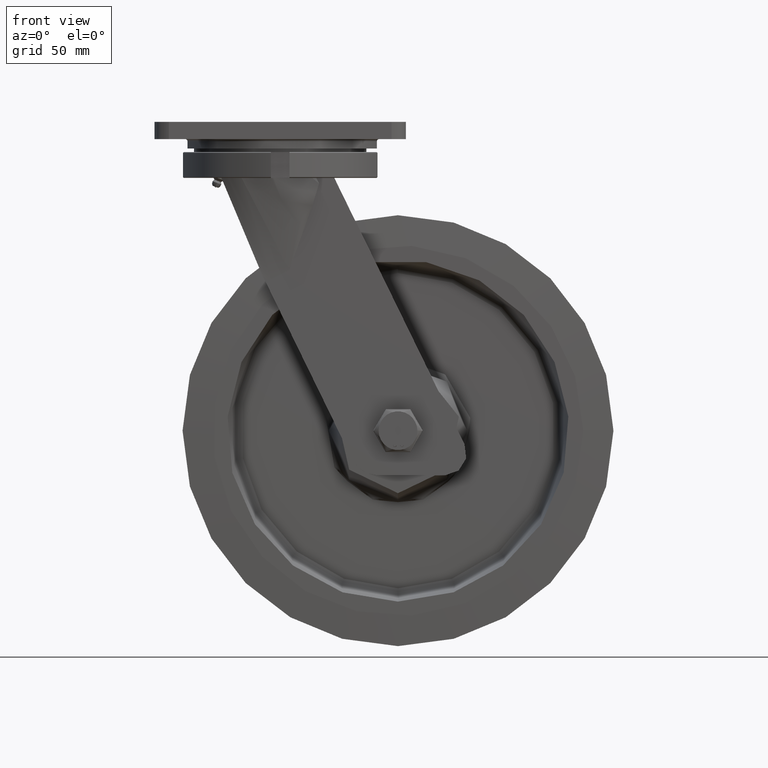
[diagram: clean part render]
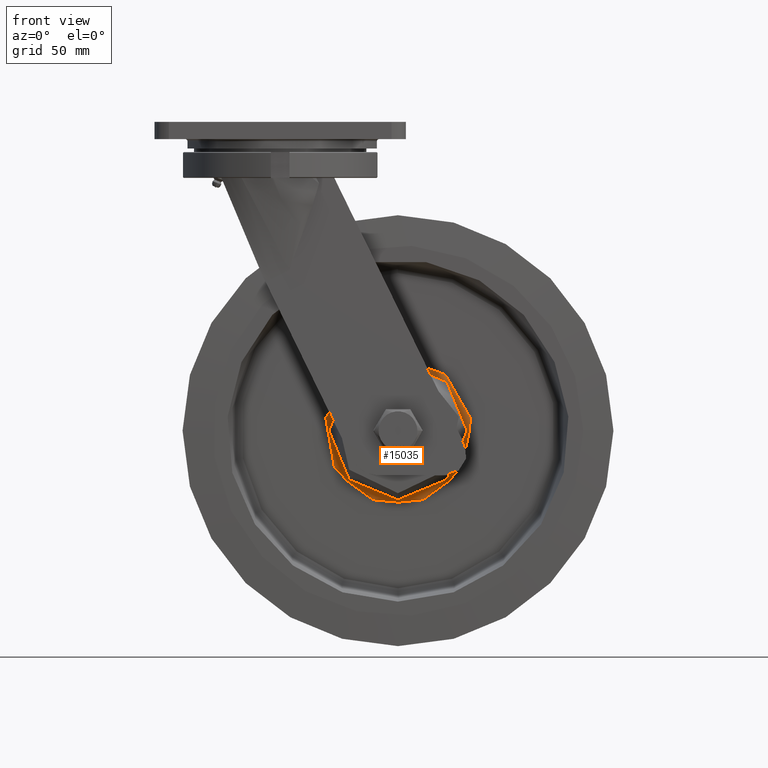
[diagram: same view with one face highlighted and labeled with its STEP entity id]
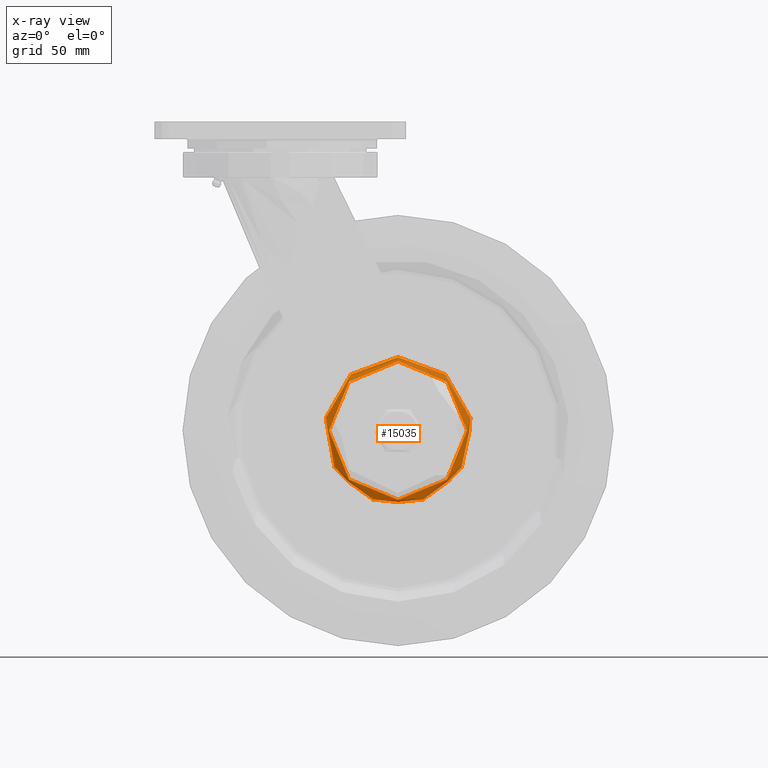
[diagram: x-ray of the same camera — body ghosted, the highlighted face saturated]
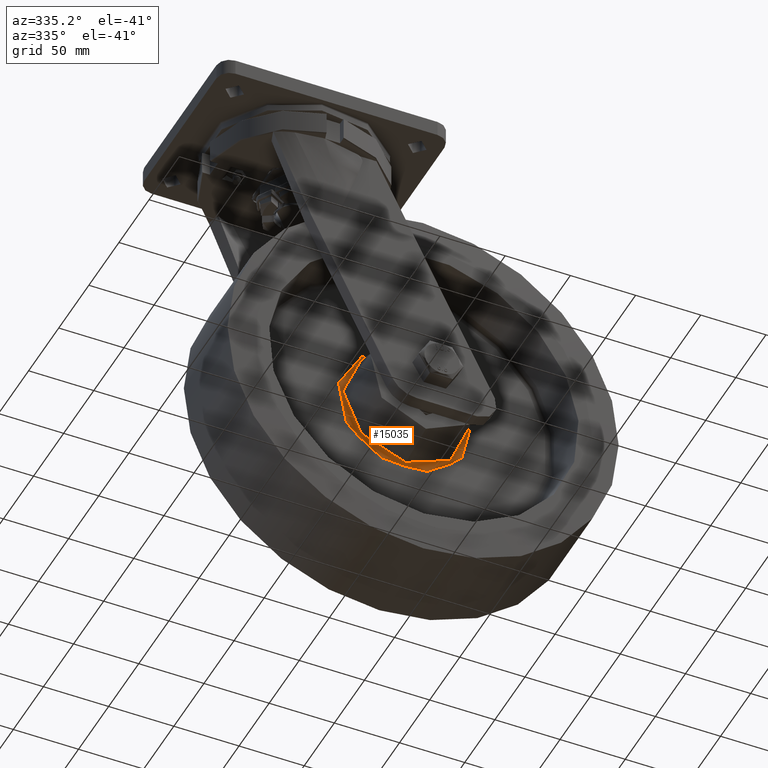
[diagram: same view with one face highlighted and labeled with its STEP entity id]
A machine part, front view. The second image highlights one B-rep face of the part: STEP entity #15035.
The next image is the same camera in x-ray: the body ghosted, the highlighted face saturated — about 0% of this face is hidden behind the body in this view.
A second angle (auxiliary view) of the same face is appended — the face is thin or edge-on in the first view.
In plain terms, the highlighted toroidal blend (fillet) surface has major radius 51.1121 mm and minor (blend) radius 3 mm.
Its self-contained STEP definition (entity closure, byte-faithful):
#1009=TOROIDAL_SURFACE('',#16327,51.1121303075644,3.);
#1389=FACE_OUTER_BOUND('',#2308,.T.);
#2308=EDGE_LOOP('',(#11552,#11553,#11554,#11555,#11556));
#3167=CIRCLE('',#16324,48.1406534880311);
#3168=CIRCLE('',#16325,48.1406534880311);
#3170=CIRCLE('',#16328,3.);
#3171=CIRCLE('',#16329,51.1121303075644);
#6572=VERTEX_POINT('',#44127);
#6573=VERTEX_POINT('',#44128);
#6575=VERTEX_POINT('',#44135);
#8376=EDGE_CURVE('',#6572,#6573,#3167,.T.);
#8377=EDGE_CURVE('',#6573,#6572,#3168,.T.);
#8380=EDGE_CURVE('',#6573,#6575,#3170,.T.);
#8381=EDGE_CURVE('',#6575,#6575,#3171,.T.);
#11552=ORIENTED_EDGE('',*,*,#8376,.F.);
#11553=ORIENTED_EDGE('',*,*,#8377,.F.);
#11554=ORIENTED_EDGE('',*,*,#8380,.T.);
#11555=ORIENTED_EDGE('',*,*,#8381,.T.);
#11556=ORIENTED_EDGE('',*,*,#8380,.F.);
#15035=ADVANCED_FACE('',(#1389),#1009,.F.);
#16324=AXIS2_PLACEMENT_3D('',#44129,#18639,#18640);
#16325=AXIS2_PLACEMENT_3D('',#44130,#18641,#18642);
#16327=AXIS2_PLACEMENT_3D('',#44134,#18646,#18647);
#16328=AXIS2_PLACEMENT_3D('',#44136,#18648,#18649);
#16329=AXIS2_PLACEMENT_3D('',#44137,#18650,#18651);
#18639=DIRECTION('center_axis',(3.49148336110938E-15,-1.,0.));
#18640=DIRECTION('ref_axis',(0.,0.,1.));
#18641=DIRECTION('center_axis',(3.49148336110938E-15,-1.,0.));
#18642=DIRECTION('ref_axis',(0.,0.,1.));
#18646=DIRECTION('center_axis',(3.49148336110938E-15,-1.,0.));
#18647=DIRECTION('ref_axis',(0.,0.,-1.));
#18648=DIRECTION('center_axis',(1.,3.49148336110938E-15,1.22464679914735E-16));
#18649=DIRECTION('ref_axis',(-1.22464679914735E-16,0.,1.));
#18650=DIRECTION('center_axis',(3.49148336110938E-15,-1.,0.));
#18651=DIRECTION('ref_axis',(0.,0.,1.));
#44127=CARTESIAN_POINT('',(2.7534278034523E-14,-7.58729488617596,-48.1406534880311));
#44128=CARTESIAN_POINT('',(2.7534278034523E-14,-7.58729488617596,48.1406534880311));
#44129=CARTESIAN_POINT('Origin',(3.34298077548209E-14,-7.58729488617596,
0.));
#44130=CARTESIAN_POINT('Origin',(3.34298077548209E-14,-7.58729488617596,
0.));
#44134=CARTESIAN_POINT('Origin',(3.48707607927824E-14,-8.00000000000003,
0.));
#44135=CARTESIAN_POINT('',(1.81368800315781E-14,-5.00000000000003,51.1121303075644));
#44136=CARTESIAN_POINT('Origin',(2.86113301149063E-14,-8.00000000000003,
51.1121303075644));
#44137=CARTESIAN_POINT('Origin',(2.43963107094542E-14,-5.00000000000003,
0.));